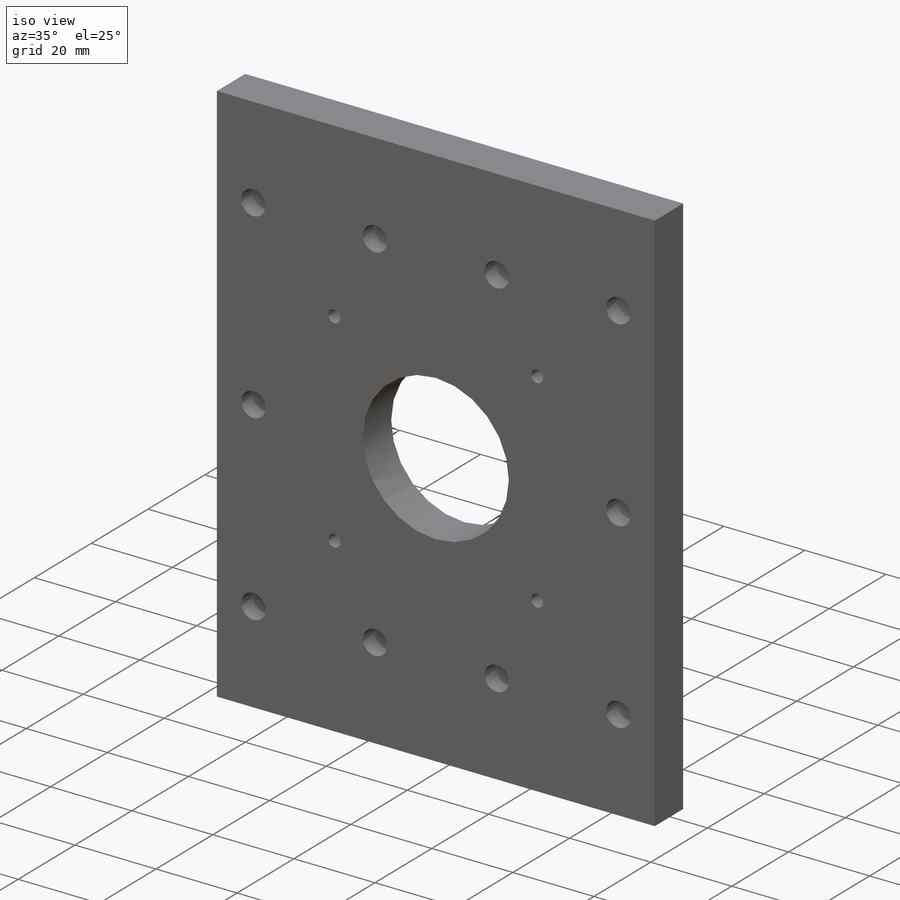
[diagram: iso view]
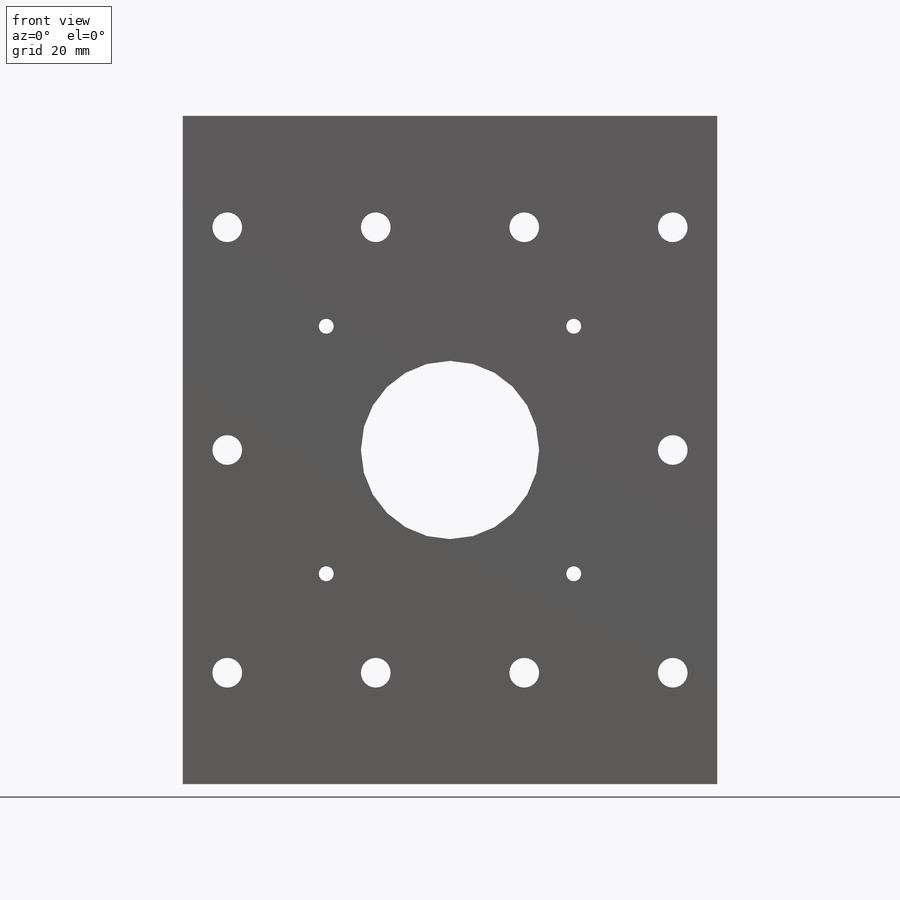
[diagram: front view]
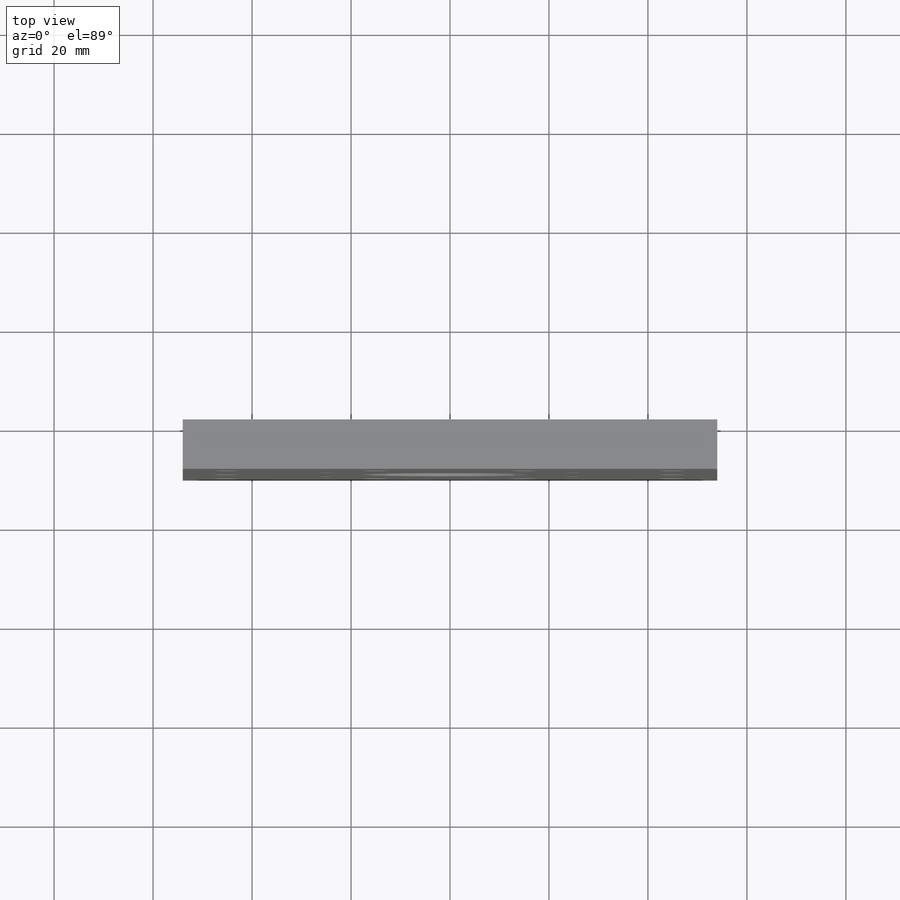
[diagram: top view]
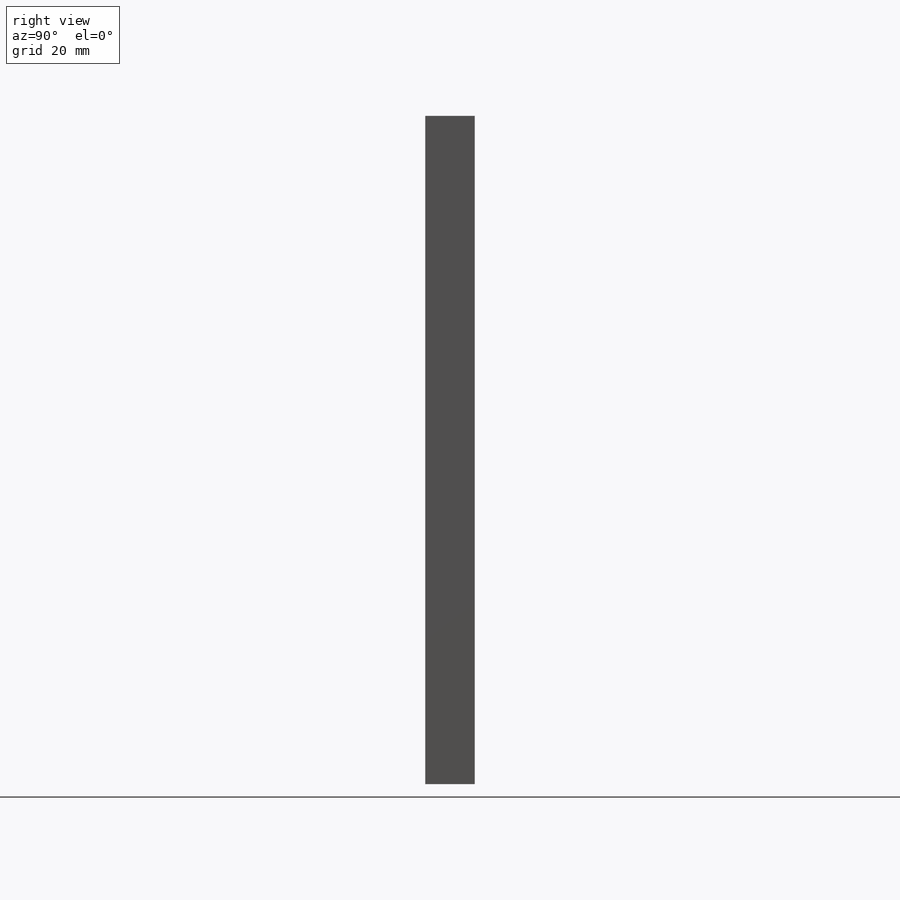
[diagram: right view]
SOLIDWORKS PART (.sldprt)
format: sldprt  version: not decoded by parser v0  size: 346,112 bytes
history: native  units: mm
features: sketch x4, cut_extrude x3, material x1, extrude x1 (+12 scaffold rows collapsed)
feature tree (21):
  scaffold x12  (default folders/planes/origin — collapsed)
  material  "7079 Alloy"
  sketch  "Sketch1"  dims[c1.D3=~1.499933mm c1.D4=~4.414178mm c1.D6=6.0mm c1.D5=~3.840704mm c2.D6=~3.452296mm c2.D1=135.0mm c2.D2=40.0mm c2.D3=30.0mm c2.D4=30.0mm c2.D5=22.5mm c3.D6=45.0mm]
  extrude  "Extrude1"  Depth=10mm
  sketch  "Sketch2"  dims[D1=~4.63594mm]
  cut_extrude  "Cut-Extrude1"  Depth=6mm
  sketch  "Sketch5"  dims[D1=~1.250461mm]
  cut_extrude  "Cut-Extrude4"  Depth=10mm
  sketch  "Sketch3"  dims[D1=8.0mm]
  cut_extrude  "Cut-Extrude2"  Depth=20mm
decode coverage: 8 of 8 modeling features carry decoded parameters
note: ~ marks probable driven/reference dimensions
note: suppression state not decoded; provenance and decode notes live in map.json
